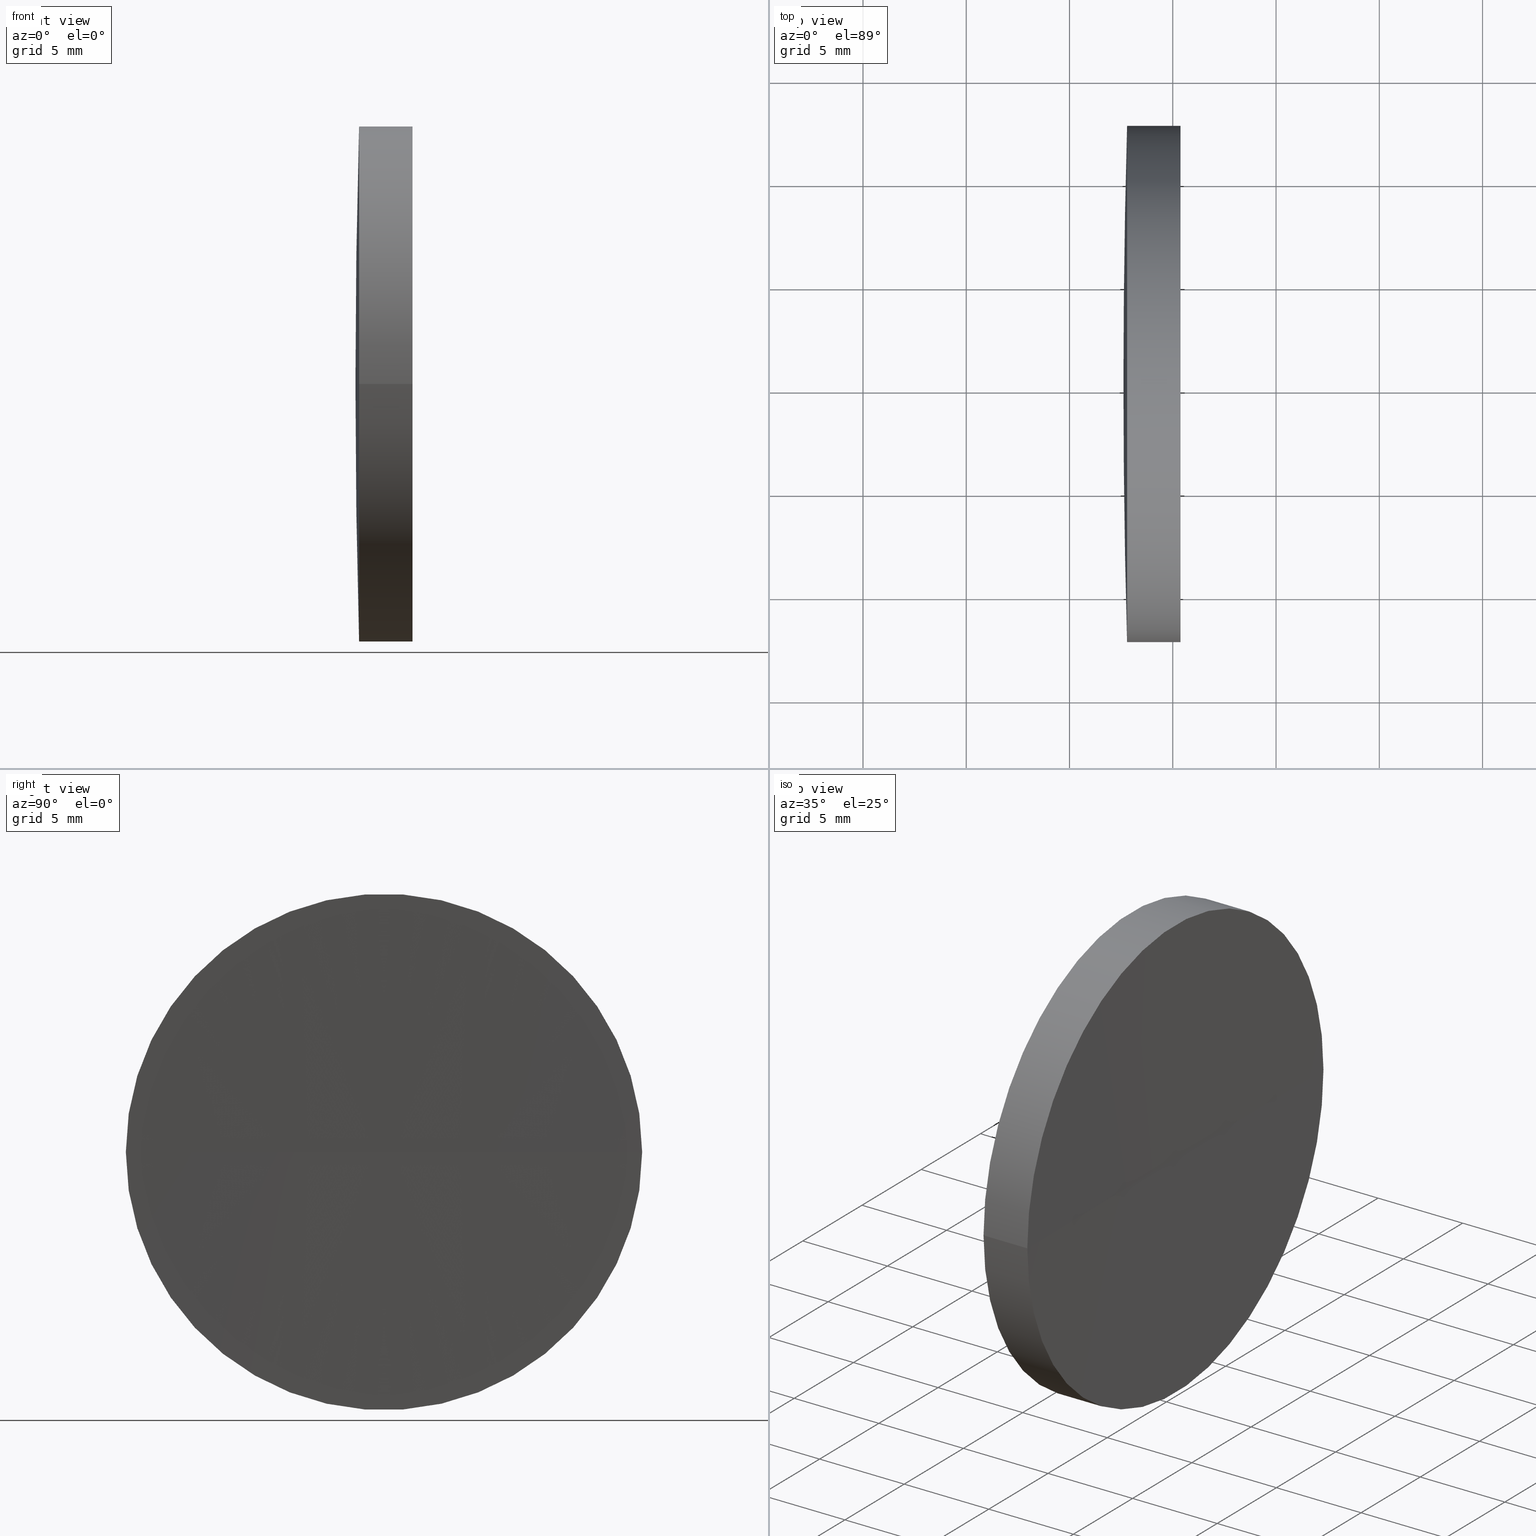
[diagram: canonical four-view strip — front | top / right | iso, engineering-drawing reading convention]
A machine part, canonical four-view strip (front | top / right | iso — engineering-drawing reading convention). The complete STEP part file that produces these views, byte-faithful:
ISO-10303-21;
HEADER;
FILE_DESCRIPTION (( 'STEP AP214' ),
    '1' );
FILE_NAME ('150013.STEP',
    '2019-07-04T07:33:20',
    ( '' ),
    ( '' ),
    'SwSTEP 2.0',
    'SolidWorks 2016',
    '' );
FILE_SCHEMA (( 'AUTOMOTIVE_DESIGN' ));
ENDSEC;

DATA;
#1 = UNCERTAINTY_MEASURE_WITH_UNIT (LENGTH_MEASURE( 1.000000000000000100E-005 ), #110, 'distance_accuracy_value', 'NONE');
#2 =( GEOMETRIC_REPRESENTATION_CONTEXT ( 3 ) GLOBAL_UNCERTAINTY_ASSIGNED_CONTEXT ( ( #83 ) ) GLOBAL_UNIT_ASSIGNED_CONTEXT ( ( #186, #46, #94 ) ) REPRESENTATION_CONTEXT ( 'NONE', 'WORKASPACE' ) );
#3 = DIRECTION ( 'NONE',  ( 0.0000000000000000000, 1.000000000000000000, 1.224646799147353500E-016 ) ) ;
#4 = PRODUCT ( '150013', '150013', '', ( #154 ) ) ;
#5 = DIRECTION ( 'NONE',  ( 0.0000000000000000000, 0.0000000000000000000, -1.000000000000000000 ) ) ;
#6 = ORIENTED_EDGE ( 'NONE', *, *, #106, .F. ) ;
#7 = CIRCLE ( 'NONE', #118, 12.49999999999992000 ) ;
#8 = CARTESIAN_POINT ( 'NONE',  ( 0.0000000000000000000, 0.0000000000000000000, 0.0000000000000000000 ) ) ;
#9 = ORIENTED_EDGE ( 'NONE', *, *, #109, .F. ) ;
#10 = DIRECTION ( 'NONE',  ( -0.0000000000000000000, 0.0000000000000000000, 1.000000000000000000 ) ) ;
#11 = DIRECTION ( 'NONE',  ( -1.000000000000000000, -6.937607244762875000E-016, -0.0000000000000000000 ) ) ;
#12 = AXIS2_PLACEMENT_3D ( 'NONE', #8, #23, #128 ) ;
#13 = LINE ( 'NONE', #79, #86 ) ;
#14 = ORIENTED_EDGE ( 'NONE', *, *, #104, .F. ) ;
#15 = PRESENTATION_STYLE_ASSIGNMENT (( #142 ) ) ;
#16 = FACE_OUTER_BOUND ( 'NONE', #156, .T. ) ;
#17 = ORIENTED_EDGE ( 'NONE', *, *, #177, .F. ) ;
#18 = ORIENTED_EDGE ( 'NONE', *, *, #99, .F. ) ;
#19 = DIRECTION ( 'NONE',  ( 0.0000000000000000000, 1.000000000000000000, 1.224646799147353200E-016 ) ) ;
#20 = CARTESIAN_POINT ( 'NONE',  ( 1325.311410679185700, 65.21684047094041100, 0.0000000000000000000 ) ) ;
#21 = EDGE_CURVE ( 'NONE', #101, #146, #85, .T. ) ;
#22 = DIRECTION ( 'NONE',  ( -1.000000000000000000, -6.937607244762875000E-016, -0.0000000000000000000 ) ) ;
#23 = DIRECTION ( 'NONE',  ( 0.0000000000000000000, 0.0000000000000000000, 1.000000000000000000 ) ) ;
#24 = CARTESIAN_POINT ( 'NONE',  ( 122.6114106791857400, 65.21684047093999900, 0.0000000000000000000 ) ) ;
#25 = FACE_OUTER_BOUND ( 'NONE', #78, .T. ) ;
#26 =( GEOMETRIC_REPRESENTATION_CONTEXT ( 3 ) GLOBAL_UNCERTAINTY_ASSIGNED_CONTEXT ( ( #56 ) ) GLOBAL_UNIT_ASSIGNED_CONTEXT ( ( #111, #129, #183 ) ) REPRESENTATION_CONTEXT ( 'NONE', 'WORKASPACE' ) );
#27 = ORIENTED_EDGE ( 'NONE', *, *, #87, .T. ) ;
#28 = APPLICATION_CONTEXT ( 'automotive_design' ) ;
#29 = CARTESIAN_POINT ( 'NONE',  ( 125.3765166120117700, 65.21684047094032600, 0.0000000000000000000 ) ) ;
#30 = ADVANCED_FACE ( 'NONE', ( #114 ), #45, .F. ) ;
#31 = EDGE_CURVE ( 'NONE', #101, #95, #13, .T. ) ;
#32 = CARTESIAN_POINT ( 'NONE',  ( 122.7876012576749800, 65.21684047094032600, 0.0000000000000000000 ) ) ;
#33 = FILL_AREA_STYLE_COLOUR ( '', #173 ) ;
#34 = CARTESIAN_POINT ( 'NONE',  ( 566.1114106791857200, 65.21684047094026900, 0.0000000000000000000 ) ) ;
#35 = EDGE_LOOP ( 'NONE', ( #55, #84, #116 ) ) ;
#36 = CARTESIAN_POINT ( 'NONE',  ( 122.7876012576749800, 65.21684047094032600, 0.0000000000000000000 ) ) ;
#37 = VECTOR ( 'NONE', #151, 1000.000000000000000 ) ;
#38 = PRODUCT_DEFINITION_CONTEXT ( 'detailed design', #47, 'design' ) ;
#39 = ORIENTED_EDGE ( 'NONE', *, *, #106, .T. ) ;
#40 = AXIS2_PLACEMENT_3D ( 'NONE', #60, #139, #3 ) ;
#41 = EDGE_LOOP ( 'NONE', ( #18, #59, #82 ) ) ;
#42 = DIRECTION ( 'NONE',  ( 1.110223024625152400E-015, -1.000000000000000000, 0.0000000000000000000 ) ) ;
#43 = CIRCLE ( 'NONE', #51, 12.50000000000015600 ) ;
#44 = CARTESIAN_POINT ( 'NONE',  ( 115.9444912979631800, 52.71684047094028400, 0.0000000000000000000 ) ) ;
#45 = SPHERICAL_SURFACE ( 'NONE', #134, 1200.000000000000000 ) ;
#46 =( NAMED_UNIT ( * ) PLANE_ANGLE_UNIT ( ) SI_UNIT ( $, .RADIAN. ) );
#47 = APPLICATION_CONTEXT ( 'automotive_design' ) ;
#48 = DIRECTION ( 'NONE',  ( -1.000000000000000000, -6.937607244762875000E-016, -0.0000000000000000000 ) ) ;
#49 = PRODUCT_RELATED_PRODUCT_CATEGORY ( 'part', '', ( #4 ) ) ;
#50 = SURFACE_STYLE_FILL_AREA ( #141 ) ;
#51 = AXIS2_PLACEMENT_3D ( 'NONE', #67, #11, #167 ) ;
#52 = CYLINDRICAL_SURFACE ( 'NONE', #132, 12.50000000000004600 ) ;
#53 = ADVANCED_FACE ( 'NONE', ( #123 ), #161, .F. ) ;
#54 = ORIENTED_EDGE ( 'NONE', *, *, #99, .T. ) ;
#55 = ORIENTED_EDGE ( 'NONE', *, *, #87, .F. ) ;
#56 = UNCERTAINTY_MEASURE_WITH_UNIT (LENGTH_MEASURE( 1.000000000000000100E-005 ), #111, 'distance_accuracy_value', 'NONE');
#57 = CIRCLE ( 'NONE', #187, 1200.000000000000000 ) ;
#58 = CARTESIAN_POINT ( 'NONE',  ( 122.7876012576749900, 77.71684047094115000, 0.0000000000000000000 ) ) ;
#59 = ORIENTED_EDGE ( 'NONE', *, *, #115, .F. ) ;
#60 = CARTESIAN_POINT ( 'NONE',  ( 566.1114106791857200, 65.21684047094026900, 0.0000000000000000000 ) ) ;
#61 = ADVANCED_BREP_SHAPE_REPRESENTATION ( '150013', ( #150, #12 ), #69 ) ;
#62 = CARTESIAN_POINT ( 'NONE',  ( 566.1114106791857200, 65.21684047094026900, 0.0000000000000000000 ) ) ;
#63 = CARTESIAN_POINT ( 'NONE',  ( 122.7876012576750100, 52.71684047093913300, -1.530808498934292900E-015 ) ) ;
#64 = CARTESIAN_POINT ( 'NONE',  ( 125.3765166120117700, 52.71684047093827300, -1.530808498934351500E-015 ) ) ;
#65 = DIRECTION ( 'NONE',  ( 0.0000000000000000000, -1.000000000000000000, 0.0000000000000000000 ) ) ;
#66 = DIRECTION ( 'NONE',  ( -1.000000000000000000, -6.937607244762875000E-016, -0.0000000000000000000 ) ) ;
#67 = CARTESIAN_POINT ( 'NONE',  ( 125.3765166120117700, 65.21684047094032600, 0.0000000000000000000 ) ) ;
#68 = APPLICATION_PROTOCOL_DEFINITION ( 'draft international standard', 'automotive_design', 1998, #28 ) ;
#69 =( GEOMETRIC_REPRESENTATION_CONTEXT ( 3 ) GLOBAL_UNCERTAINTY_ASSIGNED_CONTEXT ( ( #1 ) ) GLOBAL_UNIT_ASSIGNED_CONTEXT ( ( #110, #185, #169 ) ) REPRESENTATION_CONTEXT ( 'NONE', 'WORKASPACE' ) );
#70 = EDGE_CURVE ( 'NONE', #119, #95, #7, .T. ) ;
#71 = ADVANCED_FACE ( 'NONE', ( #16 ), #100, .T. ) ;
#72 = CIRCLE ( 'NONE', #145, 12.49999999999992000 ) ;
#73 = DIRECTION ( 'NONE',  ( -0.0000000000000000000, 0.0000000000000000000, -1.000000000000000000 ) ) ;
#74 = DIRECTION ( 'NONE',  ( -7.401486830834377300E-016, 1.000000000000000000, 0.0000000000000000000 ) ) ;
#75 = CIRCLE ( 'NONE', #40, 443.4999999999999400 ) ;
#76 = DIRECTION ( 'NONE',  ( -7.401486830834377300E-016, 1.000000000000000000, 0.0000000000000000000 ) ) ;
#77 = DIRECTION ( 'NONE',  ( 0.0000000000000000000, -0.0000000000000000000, 1.000000000000000000 ) ) ;
#78 = EDGE_LOOP ( 'NONE', ( #130, #133, #127, #6 ) ) ;
#79 = CARTESIAN_POINT ( 'NONE',  ( 115.9444912979631500, 77.71684047094038300, 1.530808498934197200E-015 ) ) ;
#80 = CYLINDRICAL_SURFACE ( 'NONE', #152, 12.50000000000004600 ) ;
#81 = SURFACE_SIDE_STYLE ('',( #174 ) ) ;
#82 = ORIENTED_EDGE ( 'NONE', *, *, #21, .T. ) ;
#83 = UNCERTAINTY_MEASURE_WITH_UNIT (LENGTH_MEASURE( 1.000000000000000100E-005 ), #186, 'distance_accuracy_value', 'NONE');
#84 = ORIENTED_EDGE ( 'NONE', *, *, #70, .T. ) ;
#85 = CIRCLE ( 'NONE', #135, 1200.000000000000000 ) ;
#86 = VECTOR ( 'NONE', #105, 1000.000000000000000 ) ;
#87 = EDGE_CURVE ( 'NONE', #119, #181, #75, .T. ) ;
#88 = SHAPE_DEFINITION_REPRESENTATION ( #188, #61 ) ;
#89 = EDGE_LOOP ( 'NONE', ( #125, #170, #39, #9 ) ) ;
#90 = PRODUCT_DEFINITION_FORMATION_WITH_SPECIFIED_SOURCE ( '�κ�', '', #4, .NOT_KNOWN. ) ;
#91 = DIRECTION ( 'NONE',  ( -8.496118506040342700E-032, 1.224646799147353200E-016, -1.000000000000000000 ) ) ;
#92 = VERTEX_POINT ( 'NONE', #64 ) ;
#93 = PRESENTATION_LAYER_ASSIGNMENT (  '', '', ( #160 ) ) ;
#94 =( NAMED_UNIT ( * ) SI_UNIT ( $, .STERADIAN. ) SOLID_ANGLE_UNIT ( ) );
#95 = VERTEX_POINT ( 'NONE', #58 ) ;
#96 = CARTESIAN_POINT ( 'NONE',  ( 115.9444912979631700, 65.21684047094032600, 0.0000000000000000000 ) ) ;
#97 = CARTESIAN_POINT ( 'NONE',  ( 566.1114106791857200, 65.21684047094026900, 0.0000000000000000000 ) ) ;
#98 = SURFACE_STYLE_USAGE ( .BOTH. , #81 ) ;
#99 = EDGE_CURVE ( 'NONE', #92, #146, #57, .T. ) ;
#100 = SPHERICAL_SURFACE ( 'NONE', #131, 443.4999999999999400 ) ;
#101 = VERTEX_POINT ( 'NONE', #138 ) ;
#102 = MECHANICAL_DESIGN_GEOMETRIC_PRESENTATION_REPRESENTATION (  '', ( #189 ), #26 ) ;
#103 = ADVANCED_FACE ( 'NONE', ( #25 ), #80, .T. ) ;
#104 = EDGE_CURVE ( 'NONE', #92, #101, #43, .T. ) ;
#105 = DIRECTION ( 'NONE',  ( -1.000000000000000000, -6.937607244762875000E-016, -0.0000000000000000000 ) ) ;
#106 = EDGE_CURVE ( 'NONE', #92, #119, #121, .T. ) ;
#107 = DIRECTION ( 'NONE',  ( 0.0000000000000000000, 0.0000000000000000000, -1.000000000000000000 ) ) ;
#108 = DIRECTION ( 'NONE',  ( -0.0000000000000000000, 0.0000000000000000000, -1.000000000000000000 ) ) ;
#109 = EDGE_CURVE ( 'NONE', #95, #119, #72, .T. ) ;
#110 =( LENGTH_UNIT ( ) NAMED_UNIT ( * ) SI_UNIT ( .MILLI., .METRE. ) );
#111 =( LENGTH_UNIT ( ) NAMED_UNIT ( * ) SI_UNIT ( .MILLI., .METRE. ) );
#112 = AXIS2_PLACEMENT_3D ( 'NONE', #34, #108, #143 ) ;
#113 = FILL_AREA_STYLE_COLOUR ( '', #158 ) ;
#114 = FACE_OUTER_BOUND ( 'NONE', #191, .T. ) ;
#115 = EDGE_CURVE ( 'NONE', #101, #92, #176, .T. ) ;
#116 = ORIENTED_EDGE ( 'NONE', *, *, #177, .T. ) ;
#117 = PRESENTATION_STYLE_ASSIGNMENT (( #98 ) ) ;
#118 = AXIS2_PLACEMENT_3D ( 'NONE', #32, #164, #126 ) ;
#119 = VERTEX_POINT ( 'NONE', #63 ) ;
#120 = MECHANICAL_DESIGN_GEOMETRIC_PRESENTATION_REPRESENTATION (  '', ( #160 ), #2 ) ;
#121 = LINE ( 'NONE', #44, #37 ) ;
#122 = CARTESIAN_POINT ( 'NONE',  ( 115.9444912979631700, 65.21684047094032600, 0.0000000000000000000 ) ) ;
#123 = FACE_OUTER_BOUND ( 'NONE', #41, .T. ) ;
#124 = DIRECTION ( 'NONE',  ( 1.000000000000000000, 0.0000000000000000000, 0.0000000000000000000 ) ) ;
#125 = ORIENTED_EDGE ( 'NONE', *, *, #31, .F. ) ;
#126 = DIRECTION ( 'NONE',  ( 1.110223024625163600E-015, -1.000000000000000000, 0.0000000000000000000 ) ) ;
#127 = ORIENTED_EDGE ( 'NONE', *, *, #70, .F. ) ;
#128 = DIRECTION ( 'NONE',  ( 1.000000000000000000, 0.0000000000000000000, 0.0000000000000000000 ) ) ;
#129 =( NAMED_UNIT ( * ) PLANE_ANGLE_UNIT ( ) SI_UNIT ( $, .RADIAN. ) );
#130 = ORIENTED_EDGE ( 'NONE', *, *, #104, .T. ) ;
#131 = AXIS2_PLACEMENT_3D ( 'NONE', #62, #73, #180 ) ;
#132 = AXIS2_PLACEMENT_3D ( 'NONE', #96, #48, #153 ) ;
#133 = ORIENTED_EDGE ( 'NONE', *, *, #31, .T. ) ;
#134 = AXIS2_PLACEMENT_3D ( 'NONE', #20, #5, #74 ) ;
#135 = AXIS2_PLACEMENT_3D ( 'NONE', #162, #77, #124 ) ;
#136 = FACE_OUTER_BOUND ( 'NONE', #89, .T. ) ;
#137 = DIRECTION ( 'NONE',  ( -1.000000000000000000, -6.937607244762875000E-016, -0.0000000000000000000 ) ) ;
#138 = CARTESIAN_POINT ( 'NONE',  ( 125.3765166120117700, 77.71684047094163400, 0.0000000000000000000 ) ) ;
#139 = DIRECTION ( 'NONE',  ( -8.496118506040342700E-032, 1.224646799147353200E-016, -1.000000000000000000 ) ) ;
#140 = SURFACE_SIDE_STYLE ('',( #50 ) ) ;
#141 = FILL_AREA_STYLE ('',( #33 ) ) ;
#142 = SURFACE_STYLE_USAGE ( .BOTH. , #140 ) ;
#143 = DIRECTION ( 'NONE',  ( -7.509964089910867700E-016, 1.000000000000000000, 0.0000000000000000000 ) ) ;
#144 = PRESENTATION_LAYER_ASSIGNMENT (  '', '', ( #189 ) ) ;
#145 = AXIS2_PLACEMENT_3D ( 'NONE', #36, #66, #184 ) ;
#146 = VERTEX_POINT ( 'NONE', #182 ) ;
#147 = ADVANCED_FACE ( 'NONE', ( #190 ), #148, .T. ) ;
#148 = SPHERICAL_SURFACE ( 'NONE', #112, 443.4999999999999400 ) ;
#149 = ORIENTED_EDGE ( 'NONE', *, *, #21, .F. ) ;
#150 = MANIFOLD_SOLID_BREP ( '��ת1', #178 ) ;
#151 = DIRECTION ( 'NONE',  ( -1.000000000000000000, -6.937607244762875000E-016, -0.0000000000000000000 ) ) ;
#152 = AXIS2_PLACEMENT_3D ( 'NONE', #122, #137, #42 ) ;
#153 = DIRECTION ( 'NONE',  ( 1.110223024625152400E-015, -1.000000000000000000, 0.0000000000000000000 ) ) ;
#154 = PRODUCT_CONTEXT ( 'NONE', #28, 'mechanical' ) ;
#155 = DIRECTION ( 'NONE',  ( 1.000000000000000000, 0.0000000000000000000, 0.0000000000000000000 ) ) ;
#156 = EDGE_LOOP ( 'NONE', ( #157, #27, #17 ) ) ;
#157 = ORIENTED_EDGE ( 'NONE', *, *, #109, .T. ) ;
#158 = COLOUR_RGB ( '',1.000000000000000000, 1.000000000000000000, 1.000000000000000000 ) ;
#159 = AXIS2_PLACEMENT_3D ( 'NONE', #29, #22, #65 ) ;
#160 = STYLED_ITEM ( 'NONE', ( #15 ), #150 ) ;
#161 = SPHERICAL_SURFACE ( 'NONE', #168, 1200.000000000000000 ) ;
#162 = CARTESIAN_POINT ( 'NONE',  ( 1325.311410679185700, 65.21684047094041100, 0.0000000000000000000 ) ) ;
#163 = CARTESIAN_POINT ( 'NONE',  ( 1325.311410679185700, 65.21684047094041100, 0.0000000000000000000 ) ) ;
#164 = DIRECTION ( 'NONE',  ( -1.000000000000000000, -6.937607244762875000E-016, -0.0000000000000000000 ) ) ;
#165 = CIRCLE ( 'NONE', #175, 443.4999999999998900 ) ;
#166 = FILL_AREA_STYLE ('',( #113 ) ) ;
#167 = DIRECTION ( 'NONE',  ( 0.0000000000000000000, -1.000000000000000000, 0.0000000000000000000 ) ) ;
#168 = AXIS2_PLACEMENT_3D ( 'NONE', #163, #107, #76 ) ;
#169 =( NAMED_UNIT ( * ) SI_UNIT ( $, .STERADIAN. ) SOLID_ANGLE_UNIT ( ) );
#170 = ORIENTED_EDGE ( 'NONE', *, *, #115, .T. ) ;
#171 = APPLICATION_PROTOCOL_DEFINITION ( 'draft international standard', 'automotive_design', 1998, #47 ) ;
#172 = ADVANCED_FACE ( 'NONE', ( #136 ), #52, .T. ) ;
#173 = COLOUR_RGB ( '',1.000000000000000000, 1.000000000000000000, 1.000000000000000000 ) ;
#174 = SURFACE_STYLE_FILL_AREA ( #166 ) ;
#175 = AXIS2_PLACEMENT_3D ( 'NONE', #97, #10, #155 ) ;
#176 = CIRCLE ( 'NONE', #159, 12.50000000000015600 ) ;
#177 = EDGE_CURVE ( 'NONE', #95, #181, #165, .T. ) ;
#178 = CLOSED_SHELL ( 'NONE', ( #103, #30, #71, #147, #53, #172 ) ) ;
#179 = CARTESIAN_POINT ( 'NONE',  ( 1325.311410679185700, 65.21684047094041100, 0.0000000000000000000 ) ) ;
#180 = DIRECTION ( 'NONE',  ( -7.509964089910867700E-016, 1.000000000000000000, 0.0000000000000000000 ) ) ;
#181 = VERTEX_POINT ( 'NONE', #24 ) ;
#182 = CARTESIAN_POINT ( 'NONE',  ( 125.3114106791857100, 65.21684047093964400, 0.0000000000000000000 ) ) ;
#183 =( NAMED_UNIT ( * ) SI_UNIT ( $, .STERADIAN. ) SOLID_ANGLE_UNIT ( ) );
#184 = DIRECTION ( 'NONE',  ( 1.110223024625163600E-015, -1.000000000000000000, 0.0000000000000000000 ) ) ;
#185 =( NAMED_UNIT ( * ) PLANE_ANGLE_UNIT ( ) SI_UNIT ( $, .RADIAN. ) );
#186 =( LENGTH_UNIT ( ) NAMED_UNIT ( * ) SI_UNIT ( .MILLI., .METRE. ) );
#187 = AXIS2_PLACEMENT_3D ( 'NONE', #179, #91, #19 ) ;
#188 = PRODUCT_DEFINITION_SHAPE ( 'NONE', 'NONE',  #192 ) ;
#189 = STYLED_ITEM ( 'NONE', ( #117 ), #61 ) ;
#190 = FACE_OUTER_BOUND ( 'NONE', #35, .T. ) ;
#191 = EDGE_LOOP ( 'NONE', ( #14, #54, #149 ) ) ;
#192 = PRODUCT_DEFINITION ( 'δ֪', '', #90, #38 ) ;
ENDSEC;
END-ISO-10303-21;
